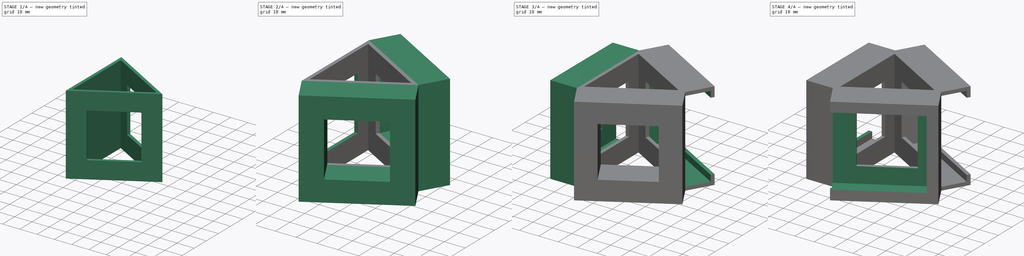
[diagram: build sequence overview — one tinted view per stage of 4, left to right]
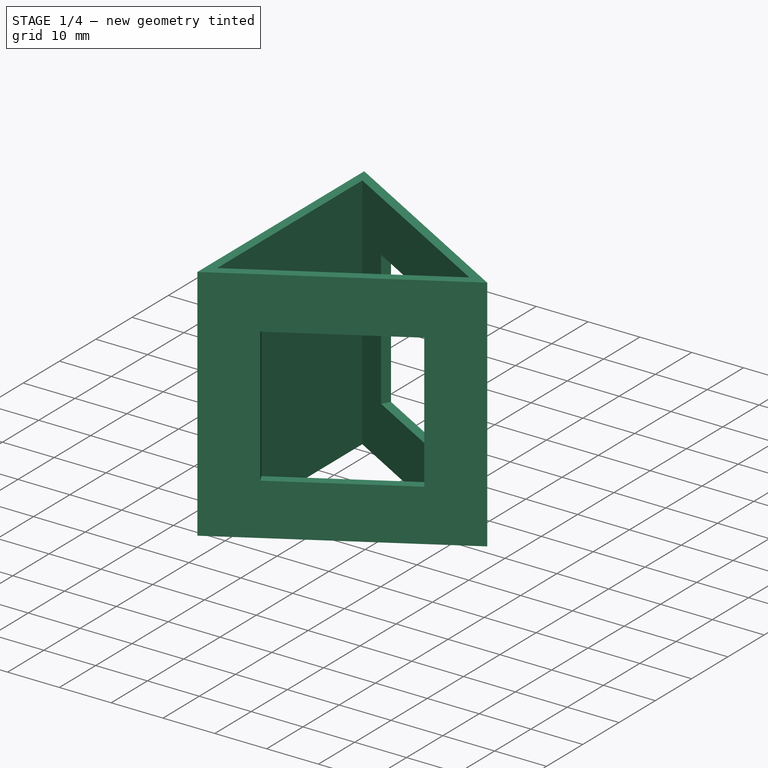
[diagram: stage 1 of 4 — iso view after this stage's code; geometry added in this stage tinted green]
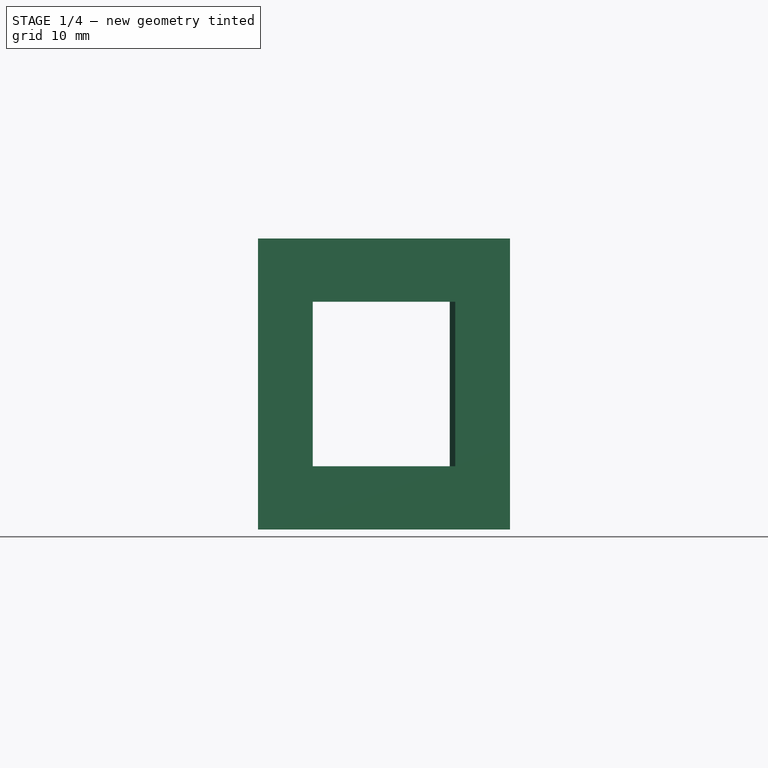
[diagram: stage 1 of 4 — front view after this stage's code; geometry added in this stage tinted green]
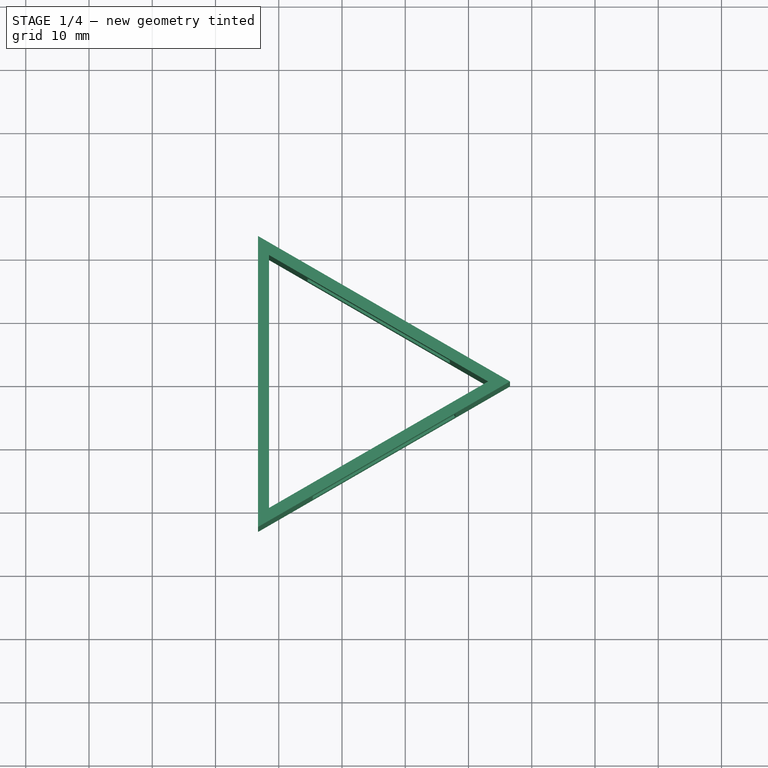
[diagram: stage 1 of 4 — top view after this stage's code; geometry added in this stage tinted green]
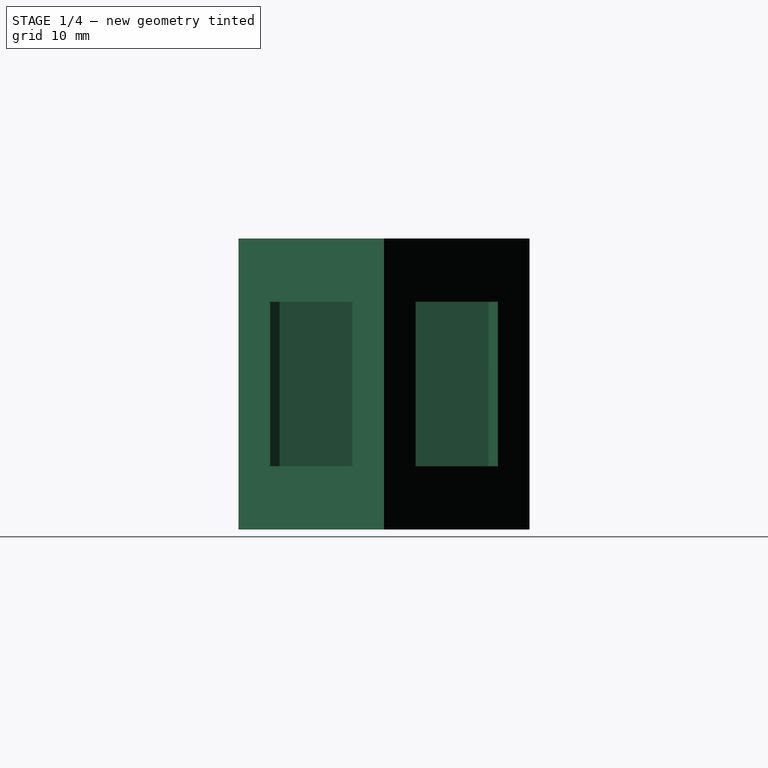
[diagram: stage 1 of 4 — right view after this stage's code; geometry added in this stage tinted green]
FCSTD DOCUMENT  (FreeCAD 0.19R)
Label: core1_3_motor
License: All rights reserved
LicenseURL: http://en.wikipedia.org/wiki/All_rights_reserved
objects: Sketcher::SketchObject×10, PartDesign::Pocket×9, PartDesign::Pad×4, PartDesign::Body×1
note: 37 computed .brp shape members not serialized (recipe doc carries the construction recipe); baked Part::Feature solids carry a one-line shape summary decoded from their .brp

FEATURE [Sketcher::SketchObject] Sketch
  FullyConstrained = true
  MapMode = 5
  Support = -> [XY_Plane]
  sketch-geometry (8):
    g0: LineSegment StartX=26.5581 StartY=-3.6e-15 StartZ=0 EndX=-13.2791 EndY=23 EndZ=0
    g1: LineSegment StartX=-13.2791 StartY=23 StartZ=0 EndX=-13.2791 EndY=-23 EndZ=0
    g2: LineSegment StartX=-13.2791 StartY=-23 StartZ=0 EndX=26.5581 EndY=-3.6e-15 EndZ=0
    g3: Circle CenterX=0 CenterY=0 CenterZ=0 NormalX=0 NormalY=0 NormalZ=1 AngleXU=0 Radius=26.5581
    g4: LineSegment StartX=23.094 StartY=0 StartZ=0 EndX=-11.547 EndY=20 EndZ=0
    g5: LineSegment StartX=-11.547 StartY=20 StartZ=0 EndX=-11.547 EndY=-20 EndZ=0
    g6: LineSegment StartX=-11.547 StartY=-20 StartZ=0 EndX=23.094 EndY=0 EndZ=0
    g7: Circle CenterX=0 CenterY=0 CenterZ=0 NormalX=0 NormalY=0 NormalZ=1 AngleXU=0 Radius=23.094
  constraints (22):
    c: Coincident(g0,g1)
    c: Coincident(g1,g2)
    c: Coincident(g2,g0)
    c: Equal(g0,g1)
    c: Equal(g0,g2)
    c: PointOnObject(g0,g3)
    c: PointOnObject(g1,g3)
    c: PointOnObject(g2,g3)
    c: Coincident(g3,g-1)
    c: PointOnObject(g2,g-1)
    c: Distance(g0) = 46
    c: Coincident(g4,g5)
    c: Coincident(g5,g6)
    c: Coincident(g6,g4)
    c: Equal(g4,g5)
    c: Equal(g4,g6)
    c: PointOnObject(g4,g7)
    c: PointOnObject(g5,g7)
    c: PointOnObject(g6,g7)
    c: Coincident(g7,g-1)
    c: PointOnObject(g6,g-1)
    c: Distance(g4) = 40
FEATURE [PartDesign::Pad] Pad
  Direction = (1,1,1)
  Length = 46
  Length2 = 100
  Profile = -> Sketch
  Type = 0
FEATURE [Sketcher::SketchObject] Sketch001
  ExternalGeometry = -> [Pad]
  FullyConstrained = true
  MapMode = 5
  Placement = pos=(6.63953,-11.5,0) rot=(0.935113,0.250563,0.250563;1.63783rad)
  Support = -> [Pad]
  sketch-geometry (4):
    g0: LineSegment StartX=-13 StartY=10 StartZ=0 EndX=13 EndY=10 EndZ=0
    g1: LineSegment StartX=13 StartY=10 StartZ=0 EndX=13 EndY=36 EndZ=0
    g2: LineSegment StartX=13 StartY=36 StartZ=0 EndX=-13 EndY=36 EndZ=0
    g3: LineSegment StartX=-13 StartY=36 StartZ=0 EndX=-13 EndY=10 EndZ=0
  constraints (12):
    c: Coincident(g0,g1)
    c: Coincident(g1,g2)
    c: Coincident(g2,g3)
    c: Coincident(g3,g0)
    c: Horizontal(g0)
    c: Horizontal(g2)
    c: Vertical(g1)
    c: Vertical(g3)
    c: Distance(g2,g-3) = 10
    c: Equal(g2,g3)
    c: Distance(g1,g-5) = 10
    c: Distance(g0,g-6) = 10
FEATURE [PartDesign::Pocket] Pocket
  BaseFeature = -> Pad
  Length = 5
  Length2 = 100
  Profile = -> Sketch001
  Type = 0
FEATURE [Sketcher::SketchObject] Sketch002
  ExternalGeometry = -> [Pocket]
  FullyConstrained = true
  MapMode = 5
  Placement = pos=(6.63953,11.5,0) rot=(0.186157,0.694747,0.694747;2.77349rad)
  Support = -> [Pocket]
  sketch-geometry (4):
    g0: LineSegment StartX=-13 StartY=10 StartZ=0 EndX=13 EndY=10 EndZ=0
    g1: LineSegment StartX=13 StartY=10 StartZ=0 EndX=13 EndY=36 EndZ=0
    g2: LineSegment StartX=13 StartY=36 StartZ=0 EndX=-13 EndY=36 EndZ=0
    g3: LineSegment StartX=-13 StartY=36 StartZ=0 EndX=-13 EndY=10 EndZ=0
  constraints (12):
    c: Coincident(g0,g1)
    c: Coincident(g1,g2)
    c: Coincident(g2,g3)
    c: Coincident(g3,g0)
    c: Horizontal(g0)
    c: Horizontal(g2)
    c: Vertical(g1)
    c: Vertical(g3)
    c: Equal(g2,g3)
    c: Distance(g2,g-3) = 10
    c: Distance(g1,g-4) = 10
    c: Distance(g0,g-5) = 10
FEATURE [PartDesign::Pocket] Pocket001
  BaseFeature = -> Pocket
  Length = 5
  Length2 = 100
  Profile = -> Sketch002
  Type = 0
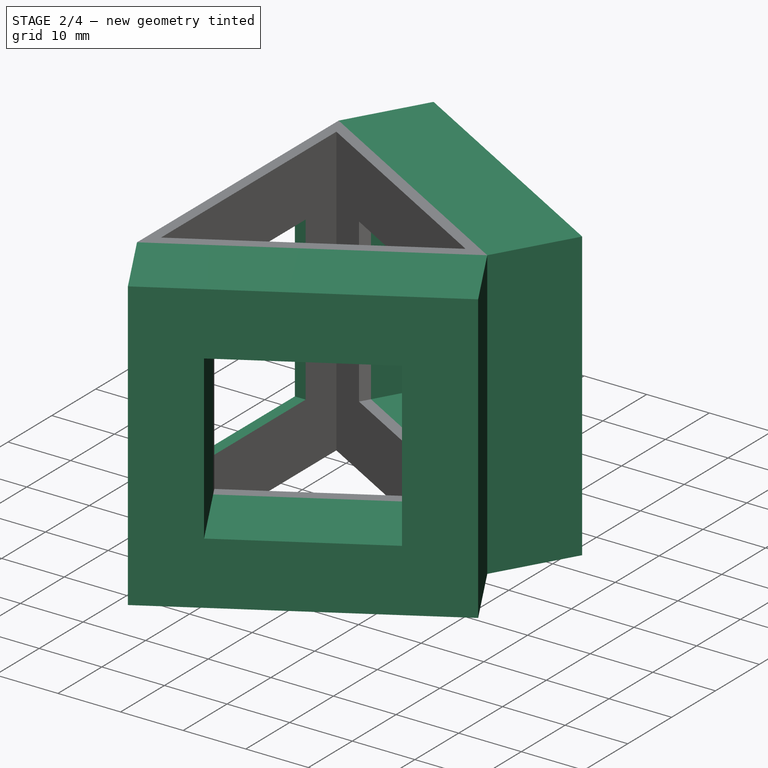
[diagram: stage 2 of 4 — iso view after this stage's code; geometry added in this stage tinted green]
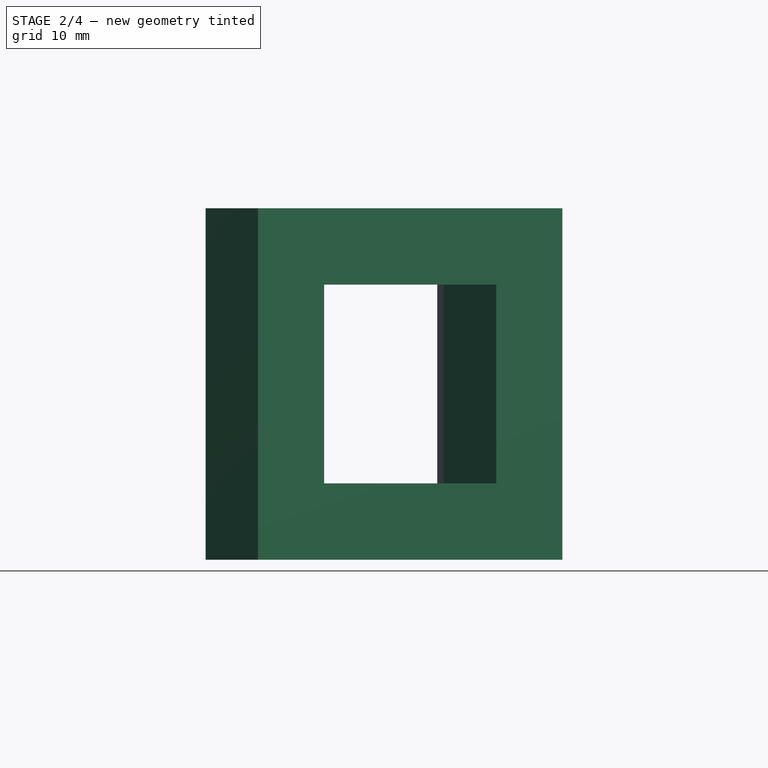
[diagram: stage 2 of 4 — front view after this stage's code; geometry added in this stage tinted green]
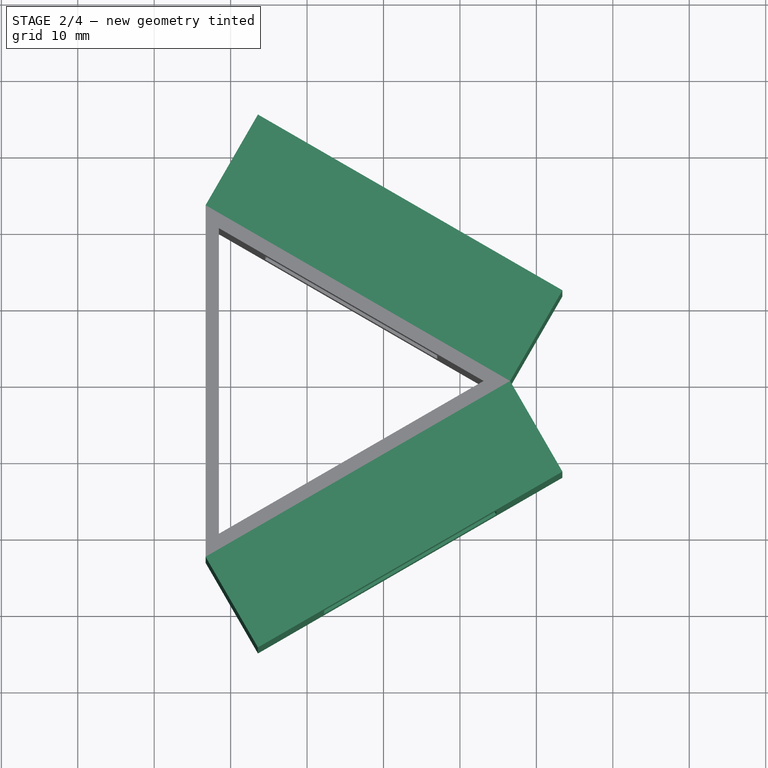
[diagram: stage 2 of 4 — top view after this stage's code; geometry added in this stage tinted green]
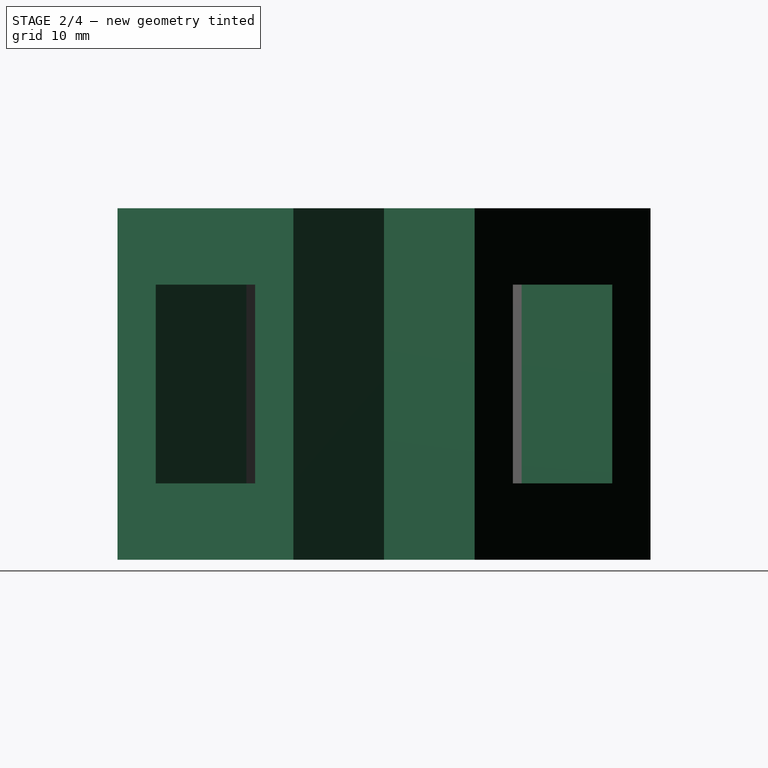
[diagram: stage 2 of 4 — right view after this stage's code; geometry added in this stage tinted green]
FEATURE [Sketcher::SketchObject] Sketch003
  ExternalGeometry = -> [Pocket001]
  FullyConstrained = true
  MapMode = 5
  Placement = pos=(-13.2791,-4.1e-15,0) rot=(0.57735,-0.57735,-0.57735;2.0944rad)
  Support = -> [Pocket001]
  sketch-geometry (4):
    g0: LineSegment StartX=-13 StartY=10 StartZ=0 EndX=13 EndY=10 EndZ=0
    g1: LineSegment StartX=13 StartY=10 StartZ=0 EndX=13 EndY=36 EndZ=0
    g2: LineSegment StartX=13 StartY=36 StartZ=0 EndX=-13 EndY=36 EndZ=0
    g3: LineSegment StartX=-13 StartY=36 StartZ=0 EndX=-13 EndY=10 EndZ=0
  constraints (12):
    c: Coincident(g0,g1)
    c: Coincident(g1,g2)
    c: Coincident(g2,g3)
    c: Coincident(g3,g0)
    c: Horizontal(g0)
    c: Horizontal(g2)
    c: Vertical(g1)
    c: Vertical(g3)
    c: Equal(g2,g3)
    c: Distance(g2,g-3) = 10
    c: Distance(g1,g-4) = 10
    c: Distance(g0,g-5) = 10
FEATURE [PartDesign::Pocket] Pocket002
  BaseFeature = -> Pocket001
  Length = 5
  Length2 = 100
  Profile = -> Sketch003
  Type = 0
FEATURE [PartDesign::Pad] Pad001
  BaseFeature = -> Pocket002
  Direction = (1,1,1)
  Length = 13.7
  Length2 = 100
  Profile = -> Pocket002 [Face2]
  Type = 0
FEATURE [PartDesign::Pad] Pad002
  BaseFeature = -> Pad001
  Direction = (1,1,1)
  Length = 13.7
  Length2 = 100
  Profile = -> Pad001 [Face1]
  Type = 0
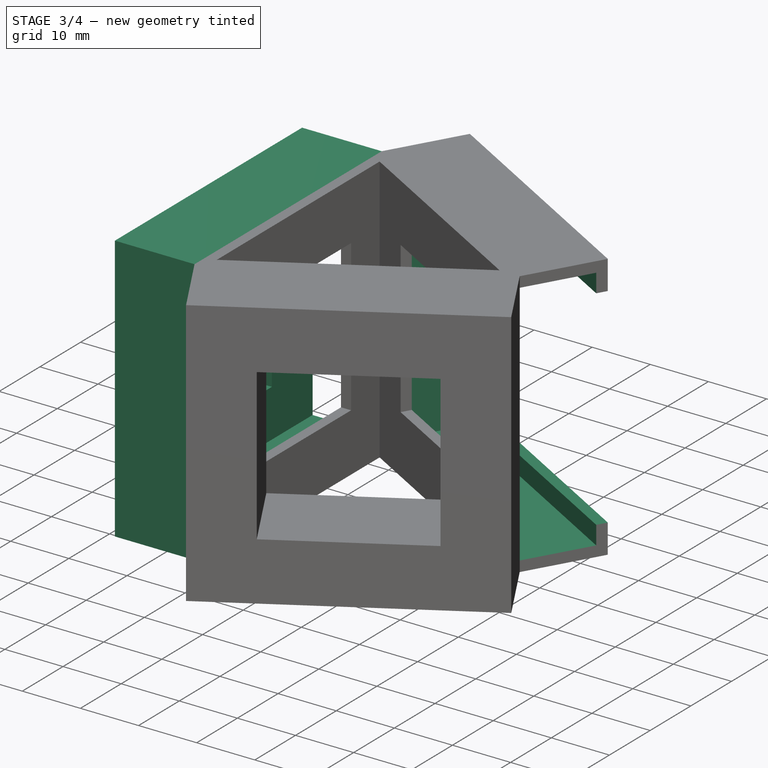
[diagram: stage 3 of 4 — iso view after this stage's code; geometry added in this stage tinted green]
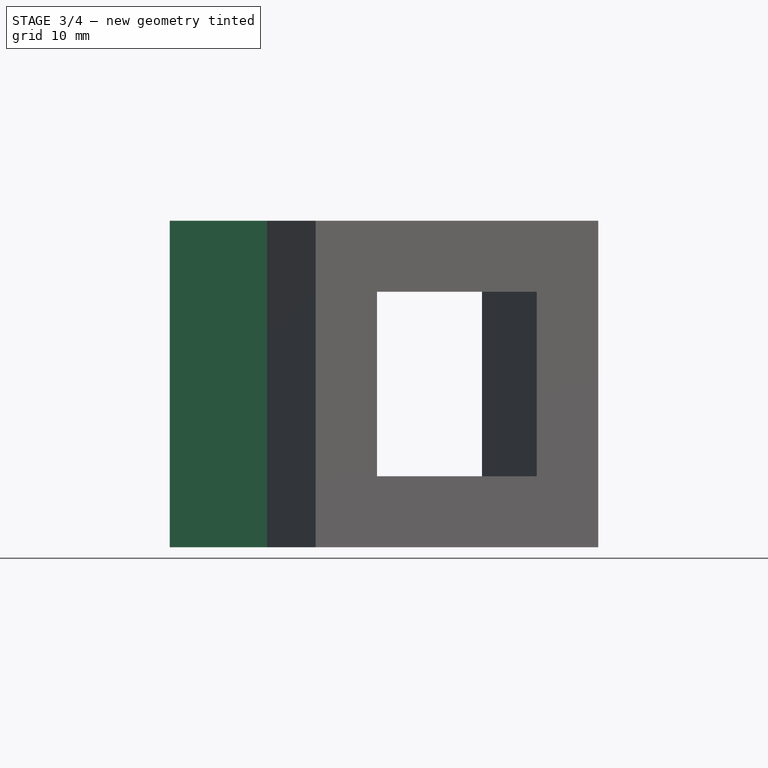
[diagram: stage 3 of 4 — front view after this stage's code; geometry added in this stage tinted green]
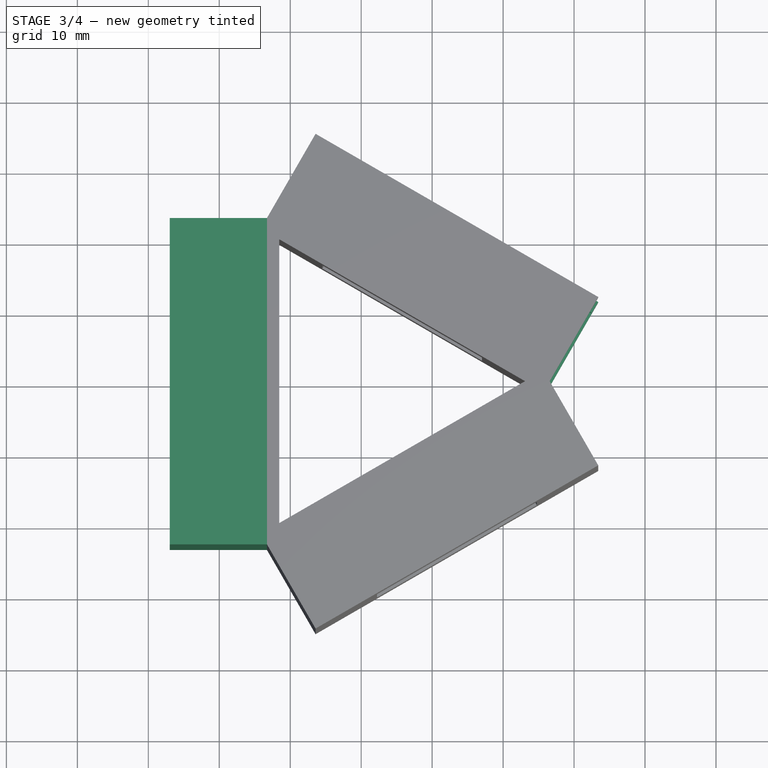
[diagram: stage 3 of 4 — top view after this stage's code; geometry added in this stage tinted green]
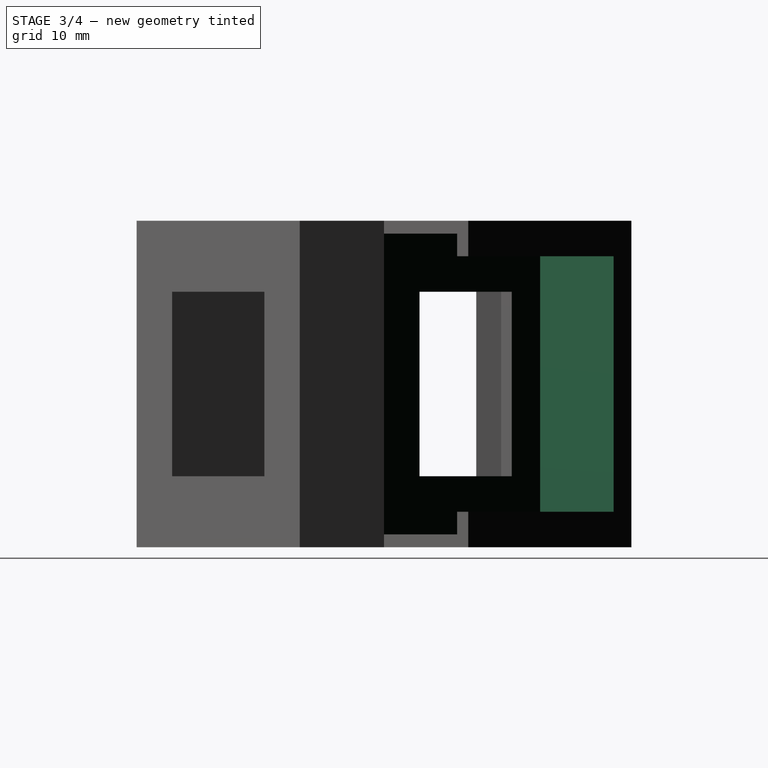
[diagram: stage 3 of 4 — right view after this stage's code; geometry added in this stage tinted green]
FEATURE [PartDesign::Pad] Pad003
  BaseFeature = -> Pad002
  Direction = (1,1,1)
  Length = 13.7
  Length2 = 100
  Profile = -> Pad002 [Face16]
  Type = 0
FEATURE [Sketcher::SketchObject] Sketch004
  ExternalGeometry = -> [Pad003]
  FullyConstrained = true
  MapMode = 5
  Placement = pos=(19.9186,-11.5,0) rot=(0.774597,0.447214,0.447214;1.82348rad)
  Support = -> [Pad003]
  sketch-geometry (4):
    g0: LineSegment StartX=13.2791 StartY=44.2 StartZ=0 EndX=25.1791 EndY=44.2 EndZ=0
    g1: LineSegment StartX=25.1791 StartY=44.2 StartZ=0 EndX=25.1791 EndY=1.8 EndZ=0
    g2: LineSegment StartX=25.1791 StartY=1.8 StartZ=0 EndX=13.2791 EndY=1.8 EndZ=0
    g3: LineSegment StartX=13.2791 StartY=1.8 StartZ=0 EndX=13.2791 EndY=44.2 EndZ=0
  constraints (12):
    c: Coincident(g0,g1)
    c: Coincident(g1,g2)
    c: Coincident(g2,g3)
    c: Coincident(g3,g0)
    c: Horizontal(g0)
    c: Horizontal(g2)
    c: Vertical(g1)
    c: Vertical(g3)
    c: PointOnObject(g0,g-5)
    c: Distance(g0,g-3) = 1.8
    c: Distance(g0,g-4) = 1.8
    c: Distance(g1,g-1) = 1.8
FEATURE [PartDesign::Pocket] Pocket003
  BaseFeature = -> Pad003
  Length = 44
  Length2 = 100
  Profile = -> Sketch004
  Type = 0
FEATURE [Sketcher::SketchObject] Sketch005
  ExternalGeometry = -> [Pocket003]
  FullyConstrained = true
  MapMode = 5
  Placement = pos=(13.4895,23.3645,0) rot=(0.186157,0.694747,0.694747;2.77349rad)
  Support = -> [Pocket003]
  sketch-geometry (4):
    g0: LineSegment StartX=-23 StartY=5 StartZ=0 EndX=18 EndY=5 EndZ=0
    g1: LineSegment StartX=18 StartY=5 StartZ=0 EndX=18 EndY=41 EndZ=0
    g2: LineSegment StartX=18 StartY=41 StartZ=0 EndX=-23 EndY=41 EndZ=0
    g3: LineSegment StartX=-23 StartY=41 StartZ=0 EndX=-23 EndY=5 EndZ=0
  constraints (12):
    c: Coincident(g0,g1)
    c: Coincident(g1,g2)
    c: Coincident(g2,g3)
    c: Coincident(g3,g0)
    c: Horizontal(g0)
    c: Horizontal(g2)
    c: Vertical(g1)
    c: Vertical(g3)
    c: PointOnObject(g0,g-6)
    c: Distance(g1,g-3) = 5
    c: Distance(g1,g-4) = 5
    c: Distance(g0,g-5) = 5
FEATURE [PartDesign::Pocket] Pocket004
  BaseFeature = -> Pocket003
  Length = 5
  Length2 = 100
  Profile = -> Sketch005
  Type = 0
FEATURE [Sketcher::SketchObject] Sketch006
  ExternalGeometry = -> [Pocket004]
  FullyConstrained = true
  MapMode = 5
  Placement = pos=(-7.1e-15,23,0) rot=(0,0.707107,0.707107;3.14159rad)
  Support = -> [Pocket004]
  sketch-geometry (4):
    g0: LineSegment StartX=13.2791 StartY=1.8 StartZ=0 EndX=25.1791 EndY=1.8 EndZ=0
    g1: LineSegment StartX=25.1791 StartY=1.8 StartZ=0 EndX=25.1791 EndY=44.2 EndZ=0
    g2: LineSegment StartX=25.1791 StartY=44.2 StartZ=0 EndX=13.2791 EndY=44.2 EndZ=0
    g3: LineSegment StartX=13.2791 StartY=44.2 StartZ=0 EndX=13.2791 EndY=1.8 EndZ=0
  constraints (12):
    c: Coincident(g0,g1)
    c: Coincident(g1,g2)
    c: Coincident(g2,g3)
    c: Coincident(g3,g0)
    c: Horizontal(g0)
    c: Horizontal(g2)
    c: Vertical(g1)
    c: Vertical(g3)
    c: PointOnObject(g0,g-5)
    c: Distance(g1,g-3) = 1.8
    c: Distance(g1,g-4) = 1.8
    c: Distance(g0,g-1) = 1.8
FEATURE [PartDesign::Pocket] Pocket005
  BaseFeature = -> Pocket004
  Length = 44
  Length2 = 100
  Profile = -> Sketch006
  Type = 0
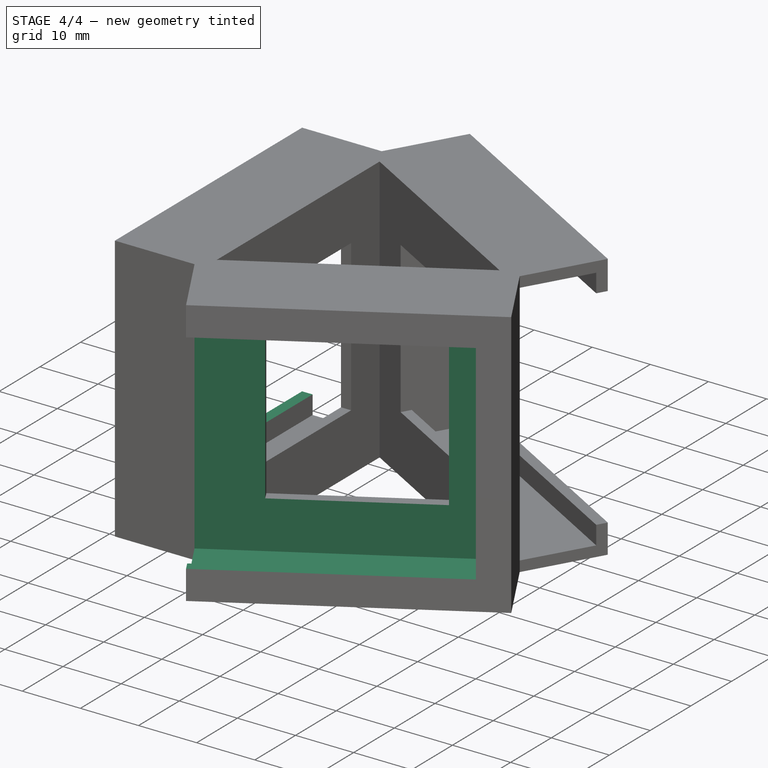
[diagram: stage 4 of 4 — iso view after this stage's code; geometry added in this stage tinted green]
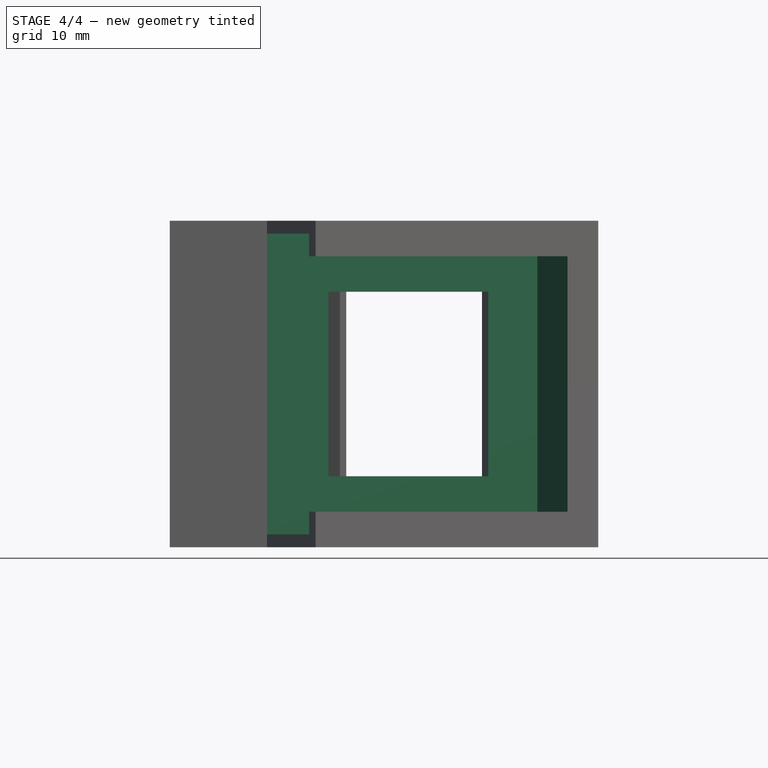
[diagram: stage 4 of 4 — front view after this stage's code; geometry added in this stage tinted green]
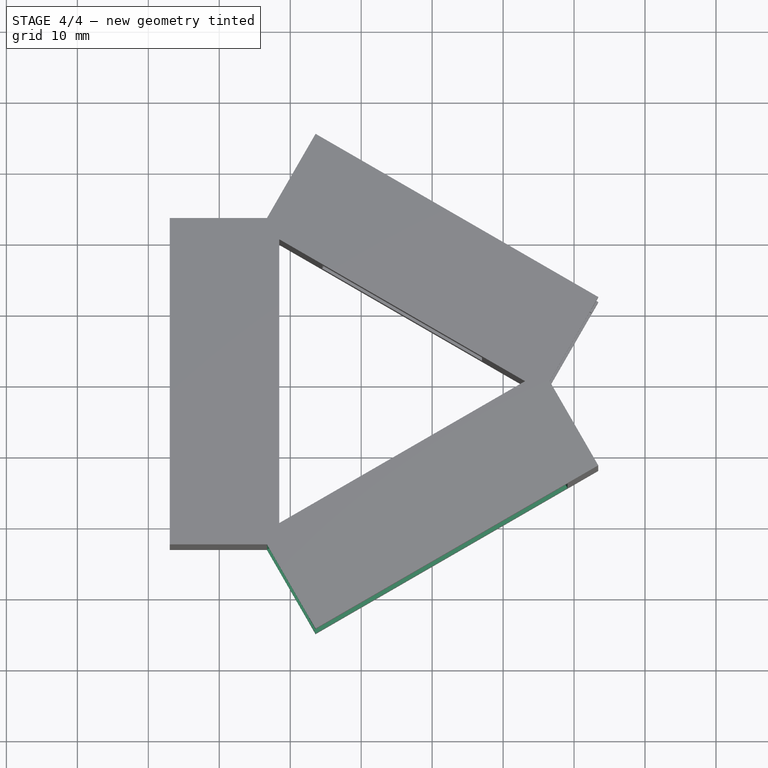
[diagram: stage 4 of 4 — top view after this stage's code; geometry added in this stage tinted green]
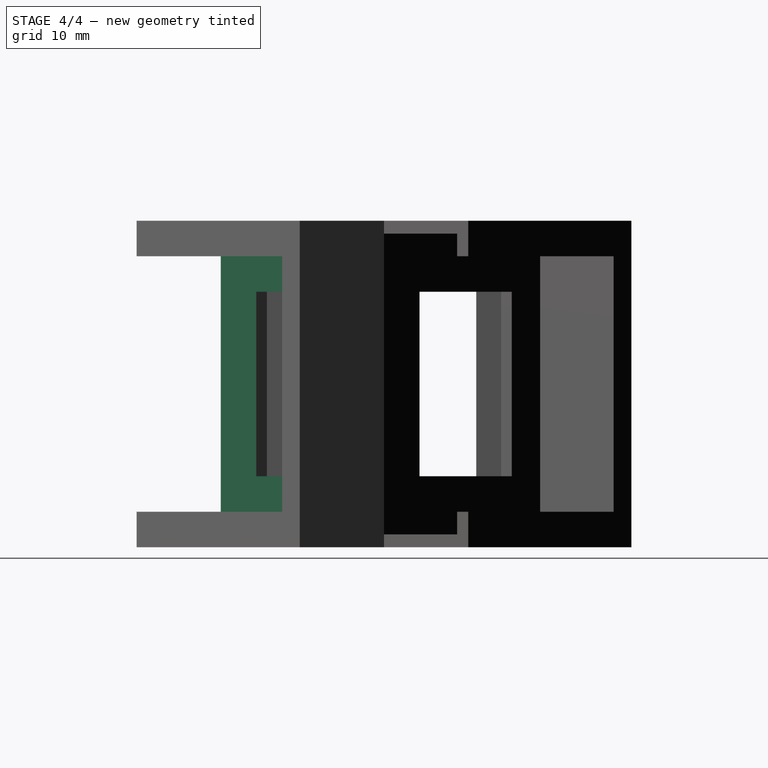
[diagram: stage 4 of 4 — right view after this stage's code; geometry added in this stage tinted green]
FEATURE [Sketcher::SketchObject] Sketch007
  ExternalGeometry = -> [Pocket005]
  FullyConstrained = true
  MapMode = 5
  Placement = pos=(-26.9791,-8.3e-15,0) rot=(0.57735,-0.57735,-0.57735;2.0944rad)
  Support = -> [Pocket005]
  sketch-geometry (4):
    g0: LineSegment StartX=-23 StartY=5 StartZ=0 EndX=18 EndY=5 EndZ=0
    g1: LineSegment StartX=18 StartY=5 StartZ=0 EndX=18 EndY=41 EndZ=0
    g2: LineSegment StartX=18 StartY=41 StartZ=0 EndX=-23 EndY=41 EndZ=0
    g3: LineSegment StartX=-23 StartY=41 StartZ=0 EndX=-23 EndY=5 EndZ=0
  constraints (12):
    c: Coincident(g0,g1)
    c: Coincident(g1,g2)
    c: Coincident(g2,g3)
    c: Coincident(g3,g0)
    c: Horizontal(g0)
    c: Horizontal(g2)
    c: Vertical(g1)
    c: Vertical(g3)
    c: PointOnObject(g0,g-6)
    c: Distance(g1,g-3) = 5
    c: Distance(g1,g-4) = 5
    c: Distance(g0,g-5) = 5
FEATURE [PartDesign::Pocket] Pocket006
  BaseFeature = -> Pocket005
  Length = 5
  Length2 = 100
  Profile = -> Sketch007
  Type = 0
FEATURE [Sketcher::SketchObject] Sketch008
  ExternalGeometry = -> [Pocket006]
  FullyConstrained = true
  MapMode = 5
  Placement = pos=(-19.9186,-11.5,0) rot=(0.774597,-0.447214,-0.447214;1.82348rad)
  Support = -> [Pocket006]
  sketch-geometry (4):
    g0: LineSegment StartX=13.2791 StartY=1.8 StartZ=0 EndX=25.1791 EndY=1.8 EndZ=0
    g1: LineSegment StartX=25.1791 StartY=1.8 StartZ=0 EndX=25.1791 EndY=44.2 EndZ=0
    g2: LineSegment StartX=25.1791 StartY=44.2 StartZ=0 EndX=13.2791 EndY=44.2 EndZ=0
    g3: LineSegment StartX=13.2791 StartY=44.2 StartZ=0 EndX=13.2791 EndY=1.8 EndZ=0
  constraints (12):
    c: Coincident(g0,g1)
    c: Coincident(g1,g2)
    c: Coincident(g2,g3)
    c: Coincident(g3,g0)
    c: Horizontal(g0)
    c: Horizontal(g2)
    c: Vertical(g1)
    c: Vertical(g3)
    c: PointOnObject(g0,g-6)
    c: Distance(g1,g-3) = 1.8
    c: Distance(g1,g-4) = 1.8
    c: Distance(g0,g-5) = 1.8
FEATURE [PartDesign::Pocket] Pocket007
  BaseFeature = -> Pocket006
  Length = 44
  Length2 = 100
  Profile = -> Sketch008
  Type = 0
FEATURE [Sketcher::SketchObject] Sketch009
  ExternalGeometry = -> [Pocket007]
  FullyConstrained = true
  MapMode = 5
  Placement = pos=(13.4895,-23.3645,0) rot=(0.935113,0.250563,0.250563;1.63783rad)
  Support = -> [Pocket007]
  sketch-geometry (4):
    g0: LineSegment StartX=-23 StartY=5 StartZ=0 EndX=18 EndY=5 EndZ=0
    g1: LineSegment StartX=18 StartY=5 StartZ=0 EndX=18 EndY=41 EndZ=0
    g2: LineSegment StartX=18 StartY=41 StartZ=0 EndX=-23 EndY=41 EndZ=0
    g3: LineSegment StartX=-23 StartY=41 StartZ=0 EndX=-23 EndY=5 EndZ=0
  constraints (12):
    c: Coincident(g0,g1)
    c: Coincident(g1,g2)
    c: Coincident(g2,g3)
    c: Coincident(g3,g0)
    c: Horizontal(g0)
    c: Horizontal(g2)
    c: Vertical(g1)
    c: Vertical(g3)
    c: PointOnObject(g0,g-6)
    c: Distance(g1,g-3) = 5
    c: Distance(g1,g-4) = 5
    c: Distance(g0,g-5) = 5
FEATURE [PartDesign::Pocket] Pocket008
  BaseFeature = -> Pocket007
  Length = 5
  Length2 = 100
  Profile = -> Sketch009
  Type = 0
FEATURE [PartDesign::Body] Body
  Group = -> [Sketch,Pad,Sketch001,Pocket,Sketch002,Pocket001,Sketch003,Pocket002,Pad001,Pad002,Pad003,Sketch004,Pocket003,Sketch005,Pocket004,Sketch006,Pocket005,Sketch007,Pocket006,Sketch008,Pocket007,Sketch009,Pocket008]
  Origin = -> Origin
  Tip = -> Pocket008
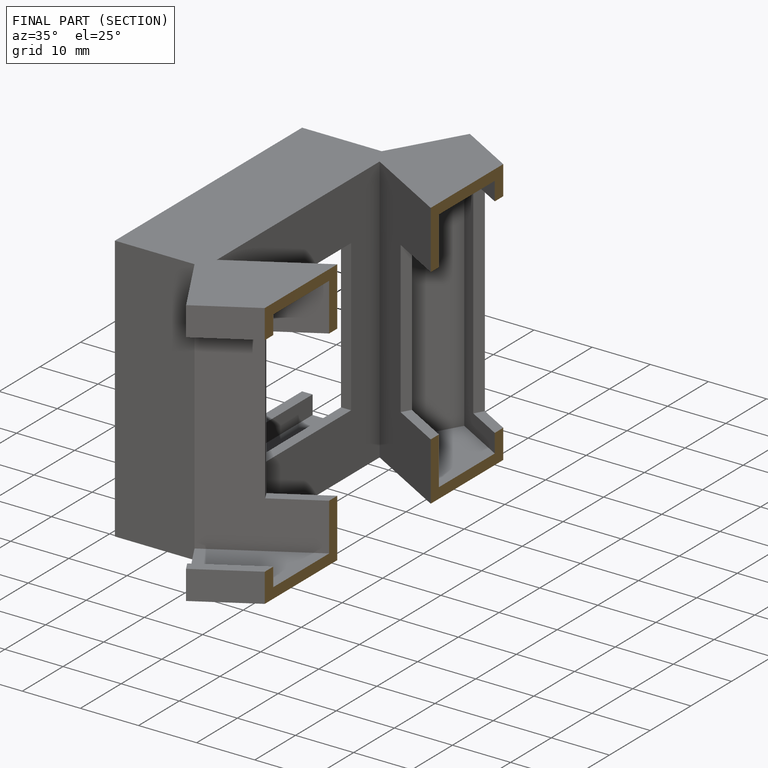
[diagram: finished part — half-section view (interior)]
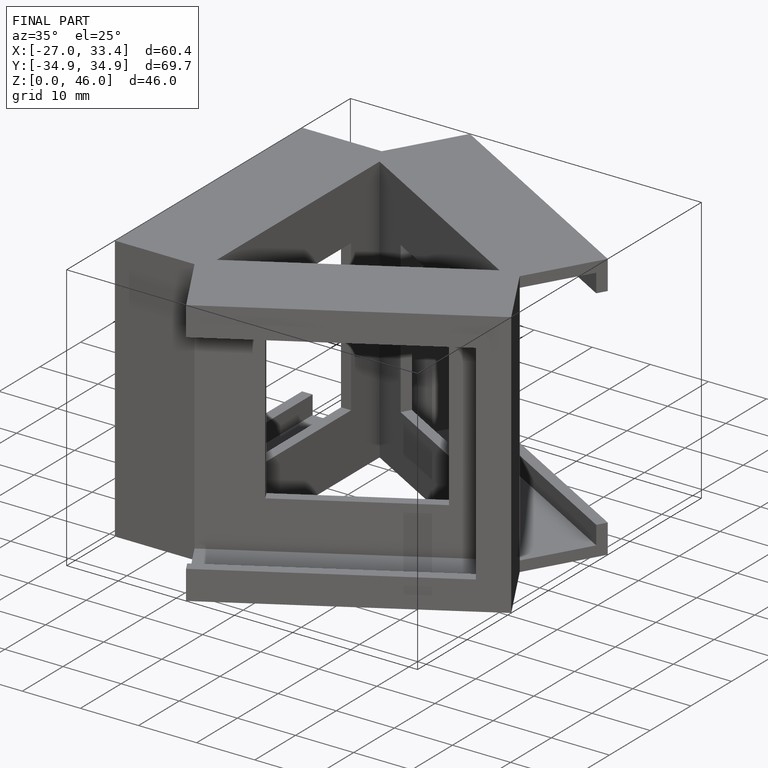
[diagram: finished part — iso view with bounding-box wireframe]
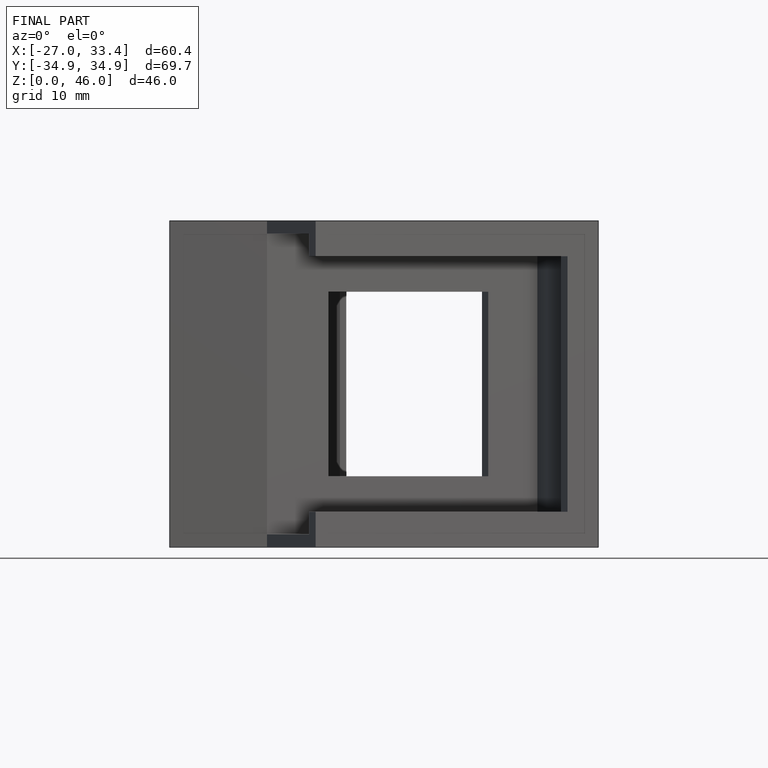
[diagram: finished part — front view with bounding-box wireframe]
